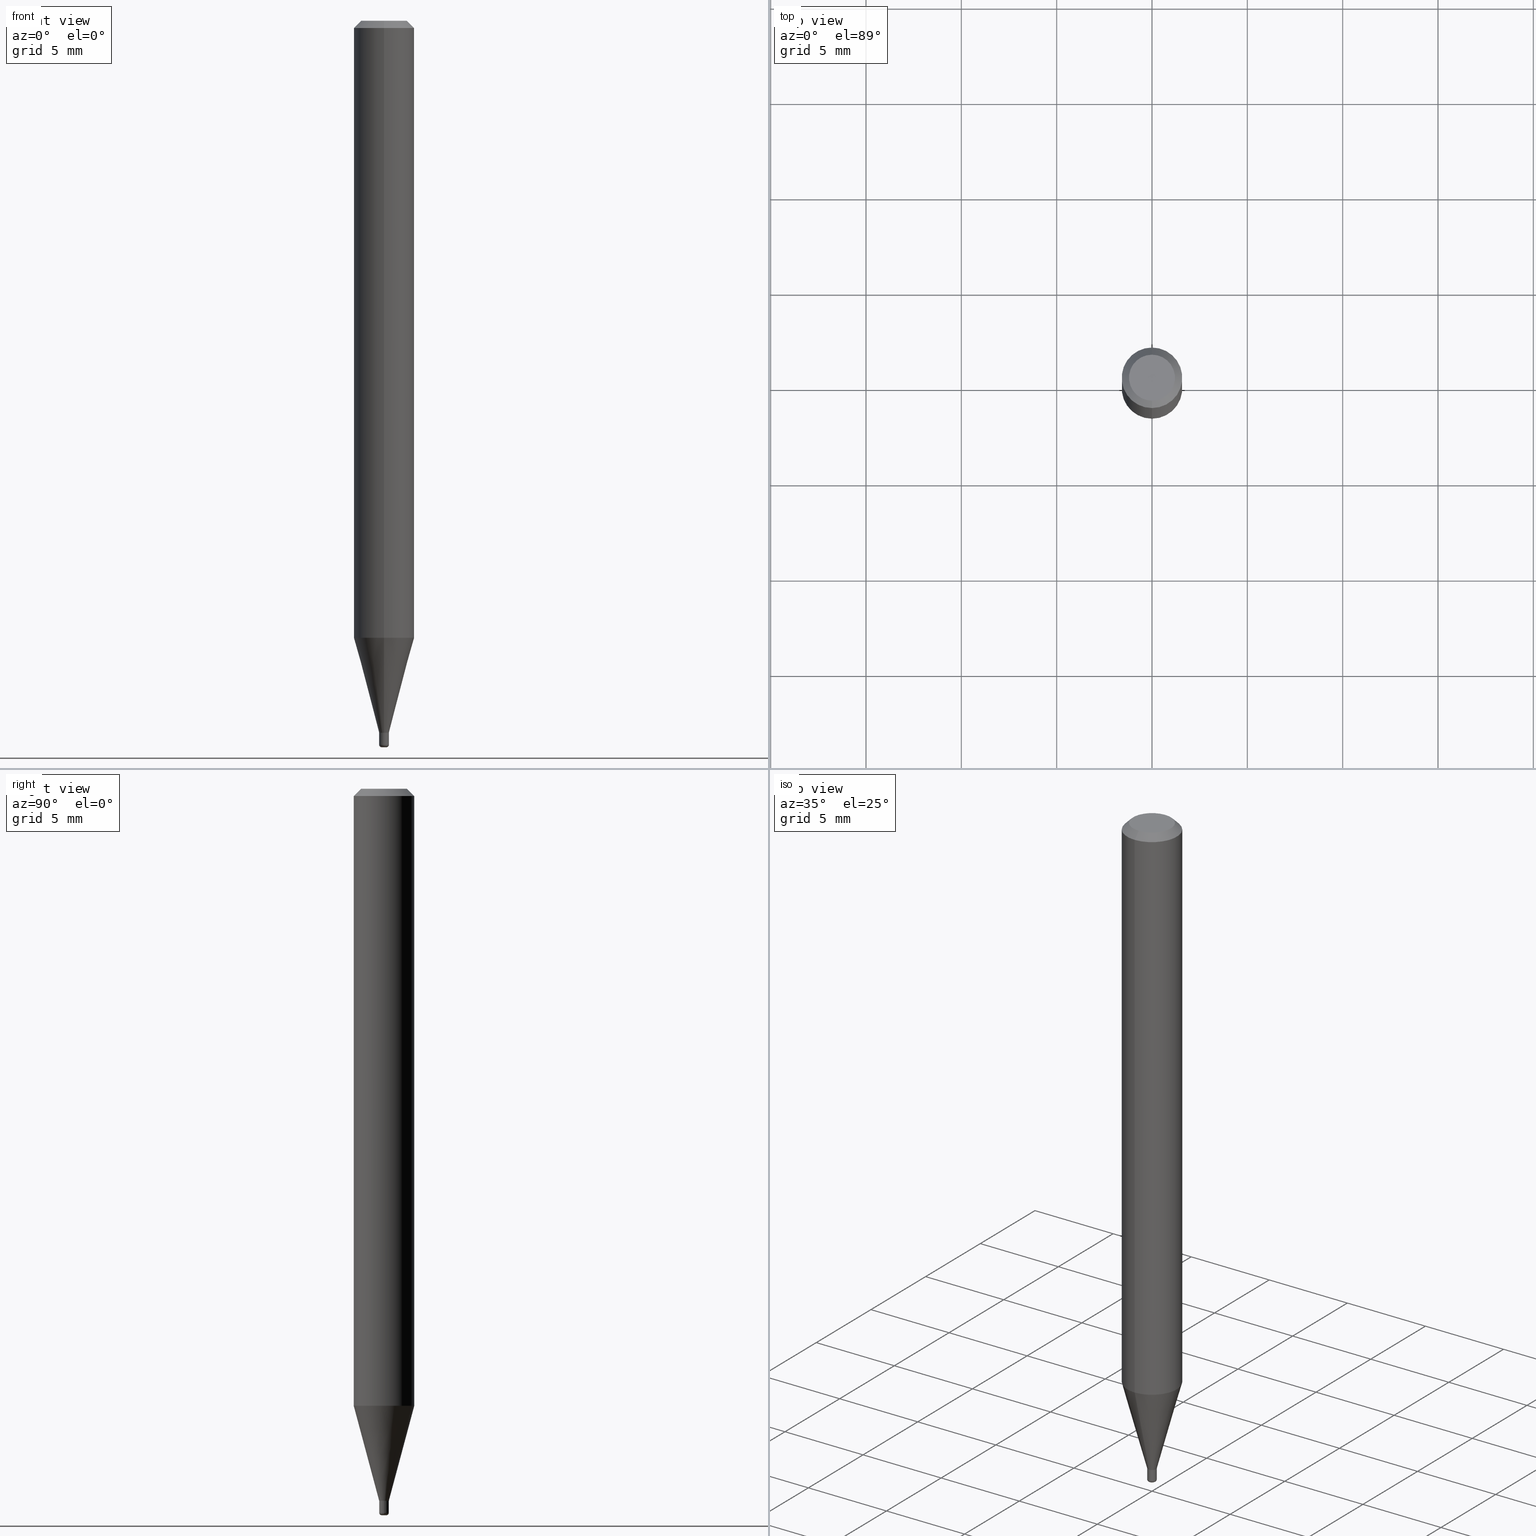
[diagram: canonical four-view strip — front | top / right | iso, engineering-drawing reading convention]
A machine part, canonical four-view strip (front | top / right | iso — engineering-drawing reading convention). The complete STEP part file that produces these views, byte-faithful:
ISO-10303-21;
HEADER;
FILE_DESCRIPTION (( 'STEP AP203' ),
    '1' );
FILE_NAME ('04024.STEP',
    '2024-02-29T19:34:30',
    ( '' ),
    ( '' ),
    'SwSTEP 2.0',
    'SolidWorks 2023',
    '' );
FILE_SCHEMA (( 'CONFIG_CONTROL_DESIGN' ));
ENDSEC;

DATA;
#1 = CARTESIAN_POINT ( 'NONE',  ( 4.440892098500935790E-16, 0.06249999999999554523, -1.274067332602635050 ) ) ;
#2 = EDGE_LOOP ( 'NONE', ( #495, #21, #121, #81 ) ) ;
#3 = DIRECTION ( 'NONE',  ( -2.445517508157003732E-29, 3.491411594847488118E-15, 1.000000000000000000 ) ) ;
#4 = CC_DESIGN_PERSON_AND_ORGANIZATION_ASSIGNMENT ( #456, #88, ( #56 ) ) ;
#5 = ORIENTED_EDGE ( 'NONE', *, *, #473, .T. ) ;
#6 = CARTESIAN_POINT ( 'NONE',  ( 3.593687978236716926E-29, -5.130629338628383513E-15, -1.469500000000000028 ) ) ;
#7 = ADVANCED_FACE ( 'NONE', ( #78 ), #104, .T. ) ;
#8 = VECTOR ( 'NONE', #372, 39.37007874015748143 ) ;
#9 =( LENGTH_UNIT ( ) NAMED_UNIT ( * ) SI_UNIT ( $, .METRE. ) );
#10 = CARTESIAN_POINT ( 'NONE',  ( 3.655975865246779122E-29, -5.219764601570503141E-15, -1.495000000000000107 ) ) ;
#11 = APPROVAL_PERSON_ORGANIZATION ( #93, #301, #468 ) ;
#12 = PERSON_AND_ORGANIZATION ( #397, #80 ) ;
#13 = LOCAL_TIME ( 14, 34, 30.00000000000000000, #97 ) ;
#14 = FACE_OUTER_BOUND ( 'NONE', #330, .T. ) ;
#15 = VERTEX_POINT ( 'NONE', #236 ) ;
#16 = CARTESIAN_POINT ( 'NONE',  ( 0.000000000000000000, 0.000000000000000000, 0.000000000000000000 ) ) ;
#17 = CARTESIAN_POINT ( 'NONE',  ( 3.594910736990795879E-29, -5.132375044425808748E-15, -1.470000000000000417 ) ) ;
#18 = ADVANCED_FACE ( 'NONE', ( #199 ), #410, .F. ) ;
#19 = CONICAL_SURFACE ( 'NONE', #345, 0.06250000000000000000, 0.7853981633974491672 ) ;
#20 = CLOSED_SHELL ( 'NONE', ( #417, #84, #123, #320, #107, #399 ) ) ;
#21 = ORIENTED_EDGE ( 'NONE', *, *, #505, .T. ) ;
#22 = FACE_OUTER_BOUND ( 'NONE', #478, .T. ) ;
#23 = VECTOR ( 'NONE', #407, 39.37007874015748854 ) ;
#24 = FACE_OUTER_BOUND ( 'NONE', #2, .T. ) ;
#25 = LOCAL_TIME ( 14, 34, 30.00000000000000000, #293 ) ;
#26 = EDGE_CURVE ( 'NONE', #255, #72, #470, .T. ) ;
#27 = CARTESIAN_POINT ( 'NONE',  ( -6.633814543798420067E-17, -0.009500000000005223016, -1.470000000000000195 ) ) ;
#28 = EDGE_CURVE ( 'NONE', #401, #508, #185, .T. ) ;
#29 = CARTESIAN_POINT ( 'NONE',  ( 0.000000000000000000, 0.000000000000000000, 0.000000000000000000 ) ) ;
#30 = EDGE_CURVE ( 'NONE', #315, #493, #196, .T. ) ;
#31 = ORIENTED_EDGE ( 'NONE', *, *, #356, .T. ) ;
#32 = CIRCLE ( 'NONE', #502, 0.06250000000000000000 ) ;
#33 = DIRECTION ( 'NONE',  ( -2.445517508157003732E-29, 3.491411594847488118E-15, 1.000000000000000000 ) ) ;
#34 = DIRECTION ( 'NONE',  ( -2.445517508157003732E-29, 3.491411594847488118E-15, 1.000000000000000000 ) ) ;
#35 = AXIS2_PLACEMENT_3D ( 'NONE', #16, #429, #161 ) ;
#36 = CARTESIAN_POINT ( 'NONE',  ( 3.593687978236716926E-29, -5.130629338628383513E-15, -1.469500000000000028 ) ) ;
#37 = CC_DESIGN_DATE_AND_TIME_ASSIGNMENT ( #298, #51, ( #227 ) ) ;
#38 = ORIENTED_EDGE ( 'NONE', *, *, #187, .F. ) ;
#39 = CIRCLE ( 'NONE', #317, 0.009500000000000089970 ) ;
#40 = CARTESIAN_POINT ( 'NONE',  ( 3.316907271900976096E-16, 0.04749999999999999362, -3.024361068583656852E-16 ) ) ;
#41 = DIRECTION ( 'NONE',  ( -1.000000000000000000, 7.105427357601060234E-15, 0.000000000000000000 ) ) ;
#42 = DIRECTION ( 'NONE',  ( -6.982962677686265133E-15, -1.000000000000000000, 0.000000000000000000 ) ) ;
#43 = DIRECTION ( 'NONE',  ( -2.445517508157003732E-29, 3.491411594847488118E-15, 1.000000000000000000 ) ) ;
#44 = AXIS2_PLACEMENT_3D ( 'NONE', #141, #390, #393 ) ;
#45 = ORIENTED_EDGE ( 'NONE', *, *, #220, .T. ) ;
#46 = ORIENTED_EDGE ( 'NONE', *, *, #448, .F. ) ;
#47 = DIRECTION ( 'NONE',  ( 1.000000000000000000, -6.982962677686266711E-15, 4.876176775795934672E-29 ) ) ;
#48 = EDGE_CURVE ( 'NONE', #493, #401, #352, .T. ) ;
#49 = CALENDAR_DATE ( 2024, 29, 2 ) ;
#50 = CARTESIAN_POINT ( 'NONE',  ( 3.115753968450635756E-29, -4.448293457665250698E-15, -1.274067332602634828 ) ) ;
#51 = DATE_TIME_ROLE ( 'creation_date' ) ;
#52 = DATE_TIME_ROLE ( 'classification_date' ) ;
#53 = DIRECTION ( 'NONE',  ( -2.445517508157003732E-29, 3.491411594847488118E-15, 1.000000000000000000 ) ) ;
#54 = AXIS2_PLACEMENT_3D ( 'NONE', #130, #122, #279 ) ;
#55 = APPROVAL_DATE_TIME ( #423, #301 ) ;
#56 = PRODUCT ( '04024', '04024', '', ( #132 ) ) ;
#57 = FACE_OUTER_BOUND ( 'NONE', #74, .T. ) ;
#58 = ORIENTED_EDGE ( 'NONE', *, *, #135, .F. ) ;
#59 = LINE ( 'NONE', #329, #182 ) ;
#60 = ADVANCED_FACE ( 'NONE', ( #405 ), #117, .T. ) ;
#61 = DIRECTION ( 'NONE',  ( -2.445517508157003732E-29, 3.491411594847488118E-15, 1.000000000000000000 ) ) ;
#62 = APPLICATION_CONTEXT ( 'configuration controlled 3d designs of mechanical parts and assemblies' ) ;
#63 = VERTEX_POINT ( 'NONE', #1 ) ;
#64 = CYLINDRICAL_SURFACE ( 'NONE', #404, 0.06250000000000000000 ) ;
#65 = MANIFOLD_SOLID_BREP ( 'Body-Move/Copy2[2]', #389 ) ;
#66 = DIRECTION ( 'NONE',  ( -6.982962677686265922E-15, -1.000000000000000000, 3.491411594847488118E-15 ) ) ;
#67 = CIRCLE ( 'NONE', #287, 0.01000000000000009041 ) ;
#68 = DIRECTION ( 'NONE',  ( -2.445517508157003732E-29, 3.491411594847488118E-15, 1.000000000000000000 ) ) ;
#69 = DIRECTION ( 'NONE',  ( -2.445517508157003732E-29, 3.491411594847488118E-15, 1.000000000000000000 ) ) ;
#70 = DESIGN_CONTEXT ( 'detailed design', #238, 'design' ) ;
#71 = AXIS2_PLACEMENT_3D ( 'NONE', #36, #43, #325 ) ;
#72 = VERTEX_POINT ( 'NONE', #378 ) ;
#73 = LINE ( 'NONE', #403, #190 ) ;
#74 = EDGE_LOOP ( 'NONE', ( #278, #45 ) ) ;
#75 = EDGE_LOOP ( 'NONE', ( #38, #153, #272, #322 ) ) ;
#76 = VECTOR ( 'NONE', #285, 39.37007874015748854 ) ;
#77 = DIRECTION ( 'NONE',  ( -2.445468806185136597E-29, 3.491481338843145583E-15, 1.000000000000000000 ) ) ;
#78 = FACE_OUTER_BOUND ( 'NONE', #449, .T. ) ;
#79 = PLANE ( 'NONE',  #435 ) ;
#80 = ORGANIZATION ( 'UNSPECIFIED', 'UNSPECIFIED', '' ) ;
#81 = ORIENTED_EDGE ( 'NONE', *, *, #363, .F. ) ;
#82 = FACE_OUTER_BOUND ( 'NONE', #332, .T. ) ;
#83 = ORIENTED_EDGE ( 'NONE', *, *, #103, .T. ) ;
#84 = ADVANCED_FACE ( 'NONE', ( #338 ), #289, .T. ) ;
#85 = ORIENTED_EDGE ( 'NONE', *, *, #290, .T. ) ;
#86 = FACE_OUTER_BOUND ( 'NONE', #75, .T. ) ;
#87 = AXIS2_PLACEMENT_3D ( 'NONE', #434, #69, #105 ) ;
#88 = PERSON_AND_ORGANIZATION_ROLE ( 'design_owner' ) ;
#89 = PERSON_AND_ORGANIZATION ( #397, #80 ) ;
#90 = LINE ( 'NONE', #462, #512 ) ;
#91 = FACE_OUTER_BOUND ( 'NONE', #331, .T. ) ;
#92 = AXIS2_PLACEMENT_3D ( 'NONE', #17, #61, #170 ) ;
#93 = PERSON_AND_ORGANIZATION ( #397, #80 ) ;
#94 = CARTESIAN_POINT ( 'NONE',  ( -0.01000000000000009041, 7.105427357601066102E-17, -4.918935090254950063E-31 ) ) ;
#95 = CC_DESIGN_PERSON_AND_ORGANIZATION_ASSIGNMENT ( #381, #100, ( #511 ) ) ;
#96 = EDGE_LOOP ( 'NONE', ( #204, #158, #297, #274 ) ) ;
#97 = COORDINATED_UNIVERSAL_TIME_OFFSET ( 5, 0, .BEHIND. ) ;
#98 = CYLINDRICAL_SURFACE ( 'NONE', #443, 0.01000000000000009041 ) ;
#99 = ORIENTED_EDGE ( 'NONE', *, *, #262, .F. ) ;
#100 = PERSON_AND_ORGANIZATION_ROLE ( 'creator' ) ;
#101 = DATE_AND_TIME ( #304, #339 ) ;
#102 = DIRECTION ( 'NONE',  ( -2.445517508157003732E-29, 3.491411594847488118E-15, 1.000000000000000000 ) ) ;
#103 = EDGE_CURVE ( 'NONE', #319, #203, #39, .T. ) ;
#104 = CONICAL_SURFACE ( 'NONE', #402, 0.01000000000000009041, 0.2617993877991494633 ) ;
#105 = DIRECTION ( 'NONE',  ( -6.982962677686265922E-15, -1.000000000000000000, 0.000000000000000000 ) ) ;
#106 = AXIS2_PLACEMENT_3D ( 'NONE', #164, #333, #120 ) ;
#107 = ADVANCED_FACE ( 'NONE', ( #494 ), #367, .T. ) ;
#108 = AXIS2_PLACEMENT_3D ( 'NONE', #433, #68, #184 ) ;
#109 = CARTESIAN_POINT ( 'NONE',  ( -4.364351673553916201E-16, -0.06250000000000000000, 2.182132246779680074E-16 ) ) ;
#110 = EDGE_CURVE ( 'NONE', #485, #63, #183, .T. ) ;
#111 = LOCAL_TIME ( 14, 34, 30.00000000000000000, #216 ) ;
#112 = UNCERTAINTY_MEASURE_WITH_UNIT (LENGTH_MEASURE( 1.000000000000000082E-05 ), #488, 'distance_accuracy_value', 'NONE');
#113 = EDGE_CURVE ( 'NONE', #319, #15, #90, .T. ) ;
#114 = AXIS2_PLACEMENT_3D ( 'NONE', #283, #447, #181 ) ;
#115 = EDGE_LOOP ( 'NONE', ( #126, #218, #463, #116 ) ) ;
#116 = ORIENTED_EDGE ( 'NONE', *, *, #252, .F. ) ;
#117 = CONICAL_SURFACE ( 'NONE', #394, 0.01000000000000009041, 0.2617993877991494633 ) ;
#118 = ORIENTED_EDGE ( 'NONE', *, *, #422, .T. ) ;
#119 = ORIENTED_EDGE ( 'NONE', *, *, #113, .F. ) ;
#120 = DIRECTION ( 'NONE',  ( -6.982962677686265922E-15, -1.000000000000000000, 0.000000000000000000 ) ) ;
#121 = ORIENTED_EDGE ( 'NONE', *, *, #290, .F. ) ;
#122 = DIRECTION ( 'NONE',  ( -2.445517508157003732E-29, 3.491411594847488118E-15, 1.000000000000000000 ) ) ;
#123 = ADVANCED_FACE ( 'NONE', ( #57 ), #292, .F. ) ;
#124 = DIRECTION ( 'NONE',  ( -2.445468806185136597E-29, 3.491481338843145583E-15, 1.000000000000000000 ) ) ;
#125 = DIRECTION ( 'NONE',  ( -2.445517508157004013E-29, 3.491411594847488118E-15, 1.000000000000000000 ) ) ;
#126 = ORIENTED_EDGE ( 'NONE', *, *, #28, .T. ) ;
#127 = CARTESIAN_POINT ( 'NONE',  ( 6.927791673664621586E-17, 0.009499999999994956923, -1.470000000000000195 ) ) ;
#128 = CC_DESIGN_PERSON_AND_ORGANIZATION_ASSIGNMENT ( #12, #340, ( #511 ) ) ;
#129 = CARTESIAN_POINT ( 'NONE',  ( 0.005000000000000001839, -5.272136821653151404E-15, -1.500000000000000444 ) ) ;
#130 = CARTESIAN_POINT ( 'NONE',  ( 6.680863114206711395E-45, -9.538121425312932952E-31, -2.731881122062200662E-16 ) ) ;
#131 = CARTESIAN_POINT ( 'NONE',  ( 3.594910736990795319E-29, -5.132375044425807960E-15, -1.470000000000000195 ) ) ;
#132 = MECHANICAL_CONTEXT ( 'NONE', #62, 'mechanical' ) ;
#133 = LINE ( 'NONE', #94, #249 ) ;
#134 = AXIS2_PLACEMENT_3D ( 'NONE', #50, #53, #257 ) ;
#135 = EDGE_CURVE ( 'NONE', #178, #415, #246, .T. ) ;
#136 = ORIENTED_EDGE ( 'NONE', *, *, #323, .F. ) ;
#137 = DIRECTION ( 'NONE',  ( -2.445468806185136597E-29, 3.491481338843145583E-15, 1.000000000000000000 ) ) ;
#138 = CIRCLE ( 'NONE', #414, 0.005000000000000177913 ) ;
#139 = ORIENTED_EDGE ( 'NONE', *, *, #244, .T. ) ;
#140 = PERSON_AND_ORGANIZATION ( #397, #80 ) ;
#141 = CARTESIAN_POINT ( 'NONE',  ( 3.668536724130485580E-29, -5.236744396013051988E-15, -1.500000000000000444 ) ) ;
#142 = CARTESIAN_POINT ( 'NONE',  ( -6.982962677682733107E-17, -0.01000000000000522173, -1.470000000000000417 ) ) ;
#143 = DIRECTION ( 'NONE',  ( -2.445517508157003732E-29, 3.491411594847488118E-15, 1.000000000000000000 ) ) ;
#144 = PLANE ( 'NONE',  #44 ) ;
#145 = CC_DESIGN_PERSON_AND_ORGANIZATION_ASSIGNMENT ( #140, #303, ( #227 ) ) ;
#146 = CIRCLE ( 'NONE', #211, 0.01000000000000017888 ) ;
#147 = EDGE_LOOP ( 'NONE', ( #314, #118, #85, #498 ) ) ;
#148 = EDGE_CURVE ( 'NONE', #365, #15, #152, .T. ) ;
#149 = ORIENTED_EDGE ( 'NONE', *, *, #505, .F. ) ;
#150 = EDGE_LOOP ( 'NONE', ( #374, #357, #139, #229 ) ) ;
#151 = CARTESIAN_POINT ( 'NONE',  ( -6.982962677686328587E-17, -0.01000000000000009041, 3.491411594847519525E-17 ) ) ;
#152 = CIRCLE ( 'NONE', #294, 0.01000000000000009041 ) ;
#153 = ORIENTED_EDGE ( 'NONE', *, *, #224, .T. ) ;
#154 = CARTESIAN_POINT ( 'NONE',  ( 3.594839145092150820E-29, -5.132477568099424807E-15, -1.470000000000000195 ) ) ;
#155 = CARTESIAN_POINT ( 'NONE',  ( 3.655975865246779122E-29, -5.219764601570503141E-15, -1.495000000000000107 ) ) ;
#156 = DIRECTION ( 'NONE',  ( -2.445468806185136597E-29, 3.491481338843145583E-15, 1.000000000000000000 ) ) ;
#157 = ADVANCED_FACE ( 'NONE', ( #91 ), #19, .T. ) ;
#158 = ORIENTED_EDGE ( 'NONE', *, *, #267, .T. ) ;
#159 = LINE ( 'NONE', #237, #76 ) ;
#160 = APPROVAL ( #454, 'UNSPECIFIED' ) ;
#161 = DIRECTION ( 'NONE',  ( 1.000000000000000000, 0.000000000000000000, 0.000000000000000000 ) ) ;
#162 = VERTEX_POINT ( 'NONE', #248 ) ;
#163 = ORIENTED_EDGE ( 'NONE', *, *, #135, .T. ) ;
#164 = CARTESIAN_POINT ( 'NONE',  ( 3.594910736990795319E-29, -5.132375044425807960E-15, -1.470000000000000195 ) ) ;
#165 = EDGE_LOOP ( 'NONE', ( #288, #437, #509, #46 ) ) ;
#166 = DIRECTION ( 'NONE',  ( 1.000000000000000000, -6.982962677686304576E-15, 4.883557194083125793E-29 ) ) ;
#167 = CIRCLE ( 'NONE', #106, 0.009500000000000089970 ) ;
#168 = PERSON_AND_ORGANIZATION ( #397, #80 ) ;
#169 = ADVANCED_FACE ( 'NONE', ( #14 ), #98, .F. ) ;
#170 = DIRECTION ( 'NONE',  ( -6.982962677686265133E-15, -1.000000000000000000, 0.000000000000000000 ) ) ;
#171 = DATE_AND_TIME ( #245, #355 ) ;
#172 = DIRECTION ( 'NONE',  ( 6.982962677686265922E-15, 1.000000000000000000, -3.483106191921935554E-15 ) ) ;
#173 = ORIENTED_EDGE ( 'NONE', *, *, #328, .F. ) ;
#174 = APPLICATION_PROTOCOL_DEFINITION ( 'international standard', 'config_control_design', 1994, #62 ) ;
#175 = DIRECTION ( 'NONE',  ( 2.445517508157003732E-29, -3.491411594847488118E-15, -1.000000000000000000 ) ) ;
#176 = CC_DESIGN_DATE_AND_TIME_ASSIGNMENT ( #101, #52, ( #282 ) ) ;
#177 = AXIS2_PLACEMENT_3D ( 'NONE', #321, #489, #275 ) ;
#178 = VERTEX_POINT ( 'NONE', #217 ) ;
#179 = CARTESIAN_POINT ( 'NONE',  ( 3.655975865246779122E-29, -5.219764601570503141E-15, -1.495000000000000107 ) ) ;
#180 = SHAPE_DEFINITION_REPRESENTATION ( #254, #296 ) ;
#181 = DIRECTION ( 'NONE',  ( -6.982962677686266711E-15, -1.000000000000000000, 3.491411594847488512E-15 ) ) ;
#182 = VECTOR ( 'NONE', #379, 39.37007874015748143 ) ;
#183 = CIRCLE ( 'NONE', #134, 0.06250000000000000000 ) ;
#184 = DIRECTION ( 'NONE',  ( -6.982962677686265133E-15, -1.000000000000000000, 3.491411594847488118E-15 ) ) ;
#185 = CIRCLE ( 'NONE', #458, 0.01000000000000017888 ) ;
#186 = CARTESIAN_POINT ( 'NONE',  ( 0.01000000000000017888, -5.289594228347367228E-15, -1.495000000000000107 ) ) ;
#187 = EDGE_CURVE ( 'NONE', #508, #72, #133, .T. ) ;
#188 = ORIENTED_EDGE ( 'NONE', *, *, #247, .T. ) ;
#189 = EDGE_CURVE ( 'NONE', #493, #315, #270, .T. ) ;
#190 = VECTOR ( 'NONE', #369, 39.37007874015748143 ) ;
#191 = EDGE_LOOP ( 'NONE', ( #207, #467, #344, #326 ) ) ;
#192 = CARTESIAN_POINT ( 'NONE',  ( 3.594910736990795879E-29, -5.132375044425808748E-15, -1.470000000000000417 ) ) ;
#193 = AXIS2_PLACEMENT_3D ( 'NONE', #474, #305, #66 ) ;
#194 = CC_DESIGN_APPROVAL ( #160, ( #282 ) ) ;
#195 = DIRECTION ( 'NONE',  ( -6.982962677686265922E-15, -1.000000000000000000, 3.483106191921935554E-15 ) ) ;
#196 = CIRCLE ( 'NONE', #341, 0.005000000000000001839 ) ;
#197 = DIRECTION ( 'NONE',  ( 2.445517508157003172E-29, -3.491411594847488118E-15, -1.000000000000000000 ) ) ;
#198 = DIRECTION ( 'NONE',  ( -6.982962677686265922E-15, -1.000000000000000000, 3.491411594847488118E-15 ) ) ;
#199 = FACE_OUTER_BOUND ( 'NONE', #439, .T. ) ;
#200 = APPROVAL ( #464, 'UNSPECIFIED' ) ;
#201 = CARTESIAN_POINT ( 'NONE',  ( -6.982962677682733107E-17, -0.01000000000000522173, -1.470000000000000417 ) ) ;
#202 = CARTESIAN_POINT ( 'NONE',  ( -0.01000000000000017888, -5.105066811258952315E-15, -1.495000000000000107 ) ) ;
#203 = VERTEX_POINT ( 'NONE', #466 ) ;
#204 = ORIENTED_EDGE ( 'NONE', *, *, #280, .T. ) ;
#205 = CARTESIAN_POINT ( 'NONE',  ( 3.115753968450635756E-29, -4.448293457665250698E-15, -1.274067332602634828 ) ) ;
#206 = LENGTH_MEASURE_WITH_UNIT ( LENGTH_MEASURE( 0.02539999999999999897 ), #9 );
#207 = ORIENTED_EDGE ( 'NONE', *, *, #310, .F. ) ;
#208 = DIRECTION ( 'NONE',  ( 2.438088387897960049E-29, -3.491481338843145188E-15, -1.000000000000000000 ) ) ;
#209 = APPROVAL_STATUS ( 'not_yet_approved' ) ;
#210 = CARTESIAN_POINT ( 'NONE',  ( 6.982962677689861205E-17, 0.009999999999994867161, -1.470000000000000195 ) ) ;
#211 = AXIS2_PLACEMENT_3D ( 'NONE', #440, #230, #418 ) ;
#212 = ADVANCED_FACE ( 'NONE', ( #413 ), #226, .T. ) ;
#213 = APPROVAL_ROLE ( '' ) ;
#214 = DIRECTION ( 'NONE',  ( -2.445468806185136597E-29, 3.491481338843145583E-15, 1.000000000000000000 ) ) ;
#215 = ORIENTED_EDGE ( 'NONE', *, *, #359, .T. ) ;
#216 = COORDINATED_UNIVERSAL_TIME_OFFSET ( 5, 0, .BEHIND. ) ;
#217 = CARTESIAN_POINT ( 'NONE',  ( 2.575717417130703193E-16, 0.009999999999994957367, -1.470000000000000417 ) ) ;
#218 = ORIENTED_EDGE ( 'NONE', *, *, #187, .T. ) ;
#219 = DIRECTION ( 'NONE',  ( 1.000000000000000000, -6.982962677686304576E-15, 4.883557194083125793E-29 ) ) ;
#220 = EDGE_CURVE ( 'NONE', #72, #255, #475, .T. ) ;
#221 = CIRCLE ( 'NONE', #358, 0.06250000000000000000 ) ;
#222 = FACE_OUTER_BOUND ( 'NONE', #150, .T. ) ;
#223 = AXIS2_PLACEMENT_3D ( 'NONE', #427, #214, #455 ) ;
#224 = EDGE_CURVE ( 'NONE', #508, #401, #146, .T. ) ;
#225 = CARTESIAN_POINT ( 'NONE',  ( 3.594910736990795319E-29, -5.132375044425807960E-15, -1.470000000000000195 ) ) ;
#226 = CONICAL_SURFACE ( 'NONE', #177, 0.06250000000000000000, 0.7853981633974491672 ) ;
#227 = PRODUCT_DEFINITION ( 'UNKNOWN', '', #511, #70 ) ;
#228 = MANIFOLD_SOLID_BREP ( 'Body-Move/Copy2[1]', #20 ) ;
#229 = ORIENTED_EDGE ( 'NONE', *, *, #148, .T. ) ;
#230 = DIRECTION ( 'NONE',  ( -2.445468806185136597E-29, 3.491481338843145583E-15, 1.000000000000000000 ) ) ;
#231 = AXIS2_PLACEMENT_3D ( 'NONE', #179, #265, #219 ) ;
#232 = EDGE_LOOP ( 'NONE', ( #149, #425, #364, #486 ) ) ;
#233 = LINE ( 'NONE', #201, #23 ) ;
#234 = CARTESIAN_POINT ( 'NONE',  ( 3.594910736990795879E-29, -5.132375044425808748E-15, -1.470000000000000417 ) ) ;
#235 = CARTESIAN_POINT ( 'NONE',  ( 3.594910736990795319E-29, -5.132375044425807960E-15, -1.470000000000000195 ) ) ;
#236 = CARTESIAN_POINT ( 'NONE',  ( 7.105427357604635697E-17, 0.009999999999994924407, -1.469500000000000028 ) ) ;
#237 = CARTESIAN_POINT ( 'NONE',  ( 7.105427357604659116E-17, 0.009999999999994957367, -1.470000000000000417 ) ) ;
#238 = APPLICATION_CONTEXT ( 'configuration controlled 3d designs of mechanical parts and assemblies' ) ;
#239 = TOROIDAL_SURFACE ( 'NONE', #231, 0.005000000000000000971, 0.005000000000000177046 ) ;
#240 = DIRECTION ( 'NONE',  ( 1.000000000000000000, -6.982962677686329819E-15, 0.000000000000000000 ) ) ;
#241 = DIRECTION ( 'NONE',  ( -2.445517508157003732E-29, 3.491411594847488118E-15, 1.000000000000000000 ) ) ;
#242 = APPLICATION_PROTOCOL_DEFINITION ( 'international standard', 'config_control_design', 1994, #238 ) ;
#243 = DIRECTION ( 'NONE',  ( -6.982962677686265922E-15, -1.000000000000000000, 0.000000000000000000 ) ) ;
#244 = EDGE_CURVE ( 'NONE', #415, #365, #480, .T. ) ;
#245 = CALENDAR_DATE ( 2024, 29, 2 ) ;
#246 = CIRCLE ( 'NONE', #92, 0.01000000000000009041 ) ;
#247 = EDGE_CURVE ( 'NONE', #415, #485, #233, .T. ) ;
#248 = CARTESIAN_POINT ( 'NONE',  ( 3.840629472727447874E-16, 0.04749999999999999362, -4.390301629614757676E-16 ) ) ;
#249 = VECTOR ( 'NONE', #424, 39.37007874015748143 ) ;
#250 = AXIS2_PLACEMENT_3D ( 'NONE', #40, #197, #371 ) ;
#251 = CALENDAR_DATE ( 2024, 29, 2 ) ;
#252 = EDGE_CURVE ( 'NONE', #401, #255, #73, .T. ) ;
#253 = DIRECTION ( 'NONE',  ( 5.024295867787193854E-15, 0.7071067811864277797, 0.7071067811866673658 ) ) ;
#254 = PRODUCT_DEFINITION_SHAPE ( 'NONE', 'NONE',  #227 ) ;
#255 = VERTEX_POINT ( 'NONE', #518 ) ;
#256 = SECURITY_CLASSIFICATION_LEVEL ( 'unclassified' ) ;
#257 = DIRECTION ( 'NONE',  ( -6.982962677686265922E-15, -1.000000000000000000, 4.370956789862821150E-15 ) ) ;
#258 = EDGE_CURVE ( 'NONE', #360, #446, #221, .T. ) ;
#259 = ORIENTED_EDGE ( 'NONE', *, *, #359, .F. ) ;
#260 = LINE ( 'NONE', #376, #337 ) ;
#261 = DATE_AND_TIME ( #460, #111 ) ;
#262 = EDGE_CURVE ( 'NONE', #15, #365, #507, .T. ) ;
#263 = CARTESIAN_POINT ( 'NONE',  ( -4.287811248607203282E-16, -0.06250000000000005551, -0.01500000000000003240 ) ) ;
#264 = CONICAL_SURFACE ( 'NONE', #87, 0.009500000000000089970, 0.7853981633972754173 ) ;
#265 = DIRECTION ( 'NONE',  ( -2.445468806185136597E-29, 3.491481338843145583E-15, 1.000000000000000000 ) ) ;
#266 =( GEOMETRIC_REPRESENTATION_CONTEXT ( 3 ) GLOBAL_UNCERTAINTY_ASSIGNED_CONTEXT ( ( #112 ) ) GLOBAL_UNIT_ASSIGNED_CONTEXT ( ( #488, #386, #453 ) ) REPRESENTATION_CONTEXT ( 'NONE', 'WORKASPACE' ) );
#267 = EDGE_CURVE ( 'NONE', #178, #63, #159, .T. ) ;
#268 = FACE_OUTER_BOUND ( 'NONE', #318, .T. ) ;
#269 = AXIS2_PLACEMENT_3D ( 'NONE', #416, #281, #271 ) ;
#270 = CIRCLE ( 'NONE', #441, 0.005000000000000001839 ) ;
#271 = DIRECTION ( 'NONE',  ( 1.000000000000000000, -6.982962677686278543E-15, 0.000000000000000000 ) ) ;
#272 = ORIENTED_EDGE ( 'NONE', *, *, #252, .T. ) ;
#273 = ORIENTED_EDGE ( 'NONE', *, *, #103, .F. ) ;
#274 = ORIENTED_EDGE ( 'NONE', *, *, #247, .F. ) ;
#275 = DIRECTION ( 'NONE',  ( 6.982962677686265922E-15, 1.000000000000000000, -3.483106191921935554E-15 ) ) ;
#276 = CIRCLE ( 'NONE', #54, 0.04749999999999999362 ) ;
#277 = ORIENTED_EDGE ( 'NONE', *, *, #448, .T. ) ;
#278 = ORIENTED_EDGE ( 'NONE', *, *, #26, .T. ) ;
#279 = DIRECTION ( 'NONE',  ( -6.982962677686266711E-15, -1.000000000000000000, 3.491411594847488512E-15 ) ) ;
#280 = EDGE_CURVE ( 'NONE', #415, #178, #67, .T. ) ;
#281 = DIRECTION ( 'NONE',  ( -6.982962677686266711E-15, -1.000000000000000000, 3.491481338843145583E-15 ) ) ;
#282 = SECURITY_CLASSIFICATION ( '', '', #256 ) ;
#283 = CARTESIAN_POINT ( 'NONE',  ( 6.680863114206711395E-45, -9.538121425312932952E-31, -2.731881122062200662E-16 ) ) ;
#284 = DIRECTION ( 'NONE',  ( 1.000000000000000000, -6.982962677686235945E-15, 0.000000000000000000 ) ) ;
#285 = DIRECTION ( 'NONE',  ( 1.839019923739594399E-15, 0.2588190451025241257, 0.9659258262890673130 ) ) ;
#286 = AXIS2_PLACEMENT_3D ( 'NONE', #368, #515, #284 ) ;
#287 = AXIS2_PLACEMENT_3D ( 'NONE', #192, #327, #366 ) ;
#288 = ORIENTED_EDGE ( 'NONE', *, *, #328, .T. ) ;
#289 = CYLINDRICAL_SURFACE ( 'NONE', #223, 0.01000000000000009041 ) ;
#290 = EDGE_CURVE ( 'NONE', #446, #360, #32, .T. ) ;
#291 = APPROVAL_DATE_TIME ( #261, #160 ) ;
#292 = PLANE ( 'NONE',  #477 ) ;
#293 = COORDINATED_UNIVERSAL_TIME_OFFSET ( 5, 0, .BEHIND. ) ;
#294 = AXIS2_PLACEMENT_3D ( 'NONE', #6, #336, #491 ) ;
#295 = DIRECTION ( 'NONE',  ( -2.445517508157003732E-29, 3.491411594847488118E-15, 1.000000000000000000 ) ) ;
#296 = ADVANCED_BREP_SHAPE_REPRESENTATION ( '04024', ( #228, #65, #35 ), #266 ) ;
#297 = ORIENTED_EDGE ( 'NONE', *, *, #110, .F. ) ;
#298 = DATE_AND_TIME ( #49, #13 ) ;
#299 = DIRECTION ( 'NONE',  ( 1.000000000000000000, -6.982962677686329819E-15, 0.000000000000000000 ) ) ;
#300 = CIRCLE ( 'NONE', #114, 0.04749999999999999362 ) ;
#301 = APPROVAL ( #209, 'UNSPECIFIED' ) ;
#302 = ORIENTED_EDGE ( 'NONE', *, *, #306, .T. ) ;
#303 = PERSON_AND_ORGANIZATION_ROLE ( 'creator' ) ;
#304 = CALENDAR_DATE ( 2024, 29, 2 ) ;
#305 = DIRECTION ( 'NONE',  ( -2.445517508157003732E-29, 3.491411594847488118E-15, 1.000000000000000000 ) ) ;
#306 = EDGE_CURVE ( 'NONE', #361, #162, #276, .T. ) ;
#307 = FACE_OUTER_BOUND ( 'NONE', #232, .T. ) ;
#308 = VECTOR ( 'NONE', #503, 39.37007874015748143 ) ;
#309 = LINE ( 'NONE', #109, #497 ) ;
#310 = EDGE_CURVE ( 'NONE', #315, #508, #138, .T. ) ;
#311 = LINE ( 'NONE', #27, #476 ) ;
#312 = CIRCLE ( 'NONE', #335, 0.06250000000000000000 ) ;
#313 = APPROVAL_PERSON_ORGANIZATION ( #89, #160, #213 ) ;
#314 = ORIENTED_EDGE ( 'NONE', *, *, #306, .F. ) ;
#315 = VERTEX_POINT ( 'NONE', #451 ) ;
#316 = DIRECTION ( 'NONE',  ( 7.105427357601001859E-15, 1.000000000000000000, -3.491481338843145583E-15 ) ) ;
#317 = AXIS2_PLACEMENT_3D ( 'NONE', #131, #295, #243 ) ;
#318 = EDGE_LOOP ( 'NONE', ( #119, #83, #277, #99 ) ) ;
#319 = VERTEX_POINT ( 'NONE', #127 ) ;
#320 = ADVANCED_FACE ( 'NONE', ( #86 ), #479, .T. ) ;
#321 = CARTESIAN_POINT ( 'NONE',  ( 3.668276262235566117E-31, -5.237117392271319346E-17, -0.01500000000000024925 ) ) ;
#322 = ORIENTED_EDGE ( 'NONE', *, *, #220, .F. ) ;
#323 = EDGE_CURVE ( 'NONE', #63, #485, #312, .T. ) ;
#324 = DIRECTION ( 'NONE',  ( -2.445468806185136597E-29, 3.491481338843145583E-15, 1.000000000000000000 ) ) ;
#325 = DIRECTION ( 'NONE',  ( -6.982962677686265133E-15, -1.000000000000000000, 0.000000000000000000 ) ) ;
#326 = ORIENTED_EDGE ( 'NONE', *, *, #224, .F. ) ;
#327 = DIRECTION ( 'NONE',  ( -2.445517508157003732E-29, 3.491411594847488118E-15, 1.000000000000000000 ) ) ;
#328 = EDGE_CURVE ( 'NONE', #203, #319, #167, .T. ) ;
#329 = CARTESIAN_POINT ( 'NONE',  ( 4.364351673553919652E-16, 0.06249999999999995143, -0.01500000000000046782 ) ) ;
#330 = EDGE_LOOP ( 'NONE', ( #58, #31, #513, #428 ) ) ;
#331 = EDGE_LOOP ( 'NONE', ( #436, #259, #5, #442 ) ) ;
#332 = EDGE_LOOP ( 'NONE', ( #173, #273 ) ) ;
#333 = DIRECTION ( 'NONE',  ( -2.445517508157003732E-29, 3.491411594847488118E-15, 1.000000000000000000 ) ) ;
#334 = DIRECTION ( 'NONE',  ( -2.445517508157004013E-29, 3.491411594847488118E-15, 1.000000000000000000 ) ) ;
#335 = AXIS2_PLACEMENT_3D ( 'NONE', #205, #3, #445 ) ;
#336 = DIRECTION ( 'NONE',  ( -2.445517508157003732E-29, 3.491411594847488118E-15, 1.000000000000000000 ) ) ;
#337 = VECTOR ( 'NONE', #334, 39.37007874015748143 ) ;
#338 = FACE_OUTER_BOUND ( 'NONE', #115, .T. ) ;
#339 = LOCAL_TIME ( 14, 34, 30.00000000000000000, #347 ) ;
#340 = PERSON_AND_ORGANIZATION_ROLE ( 'design_supplier' ) ;
#341 = AXIS2_PLACEMENT_3D ( 'NONE', #450, #124, #240 ) ;
#342 = DIRECTION ( 'NONE',  ( -2.445517508157003732E-29, 3.491411594847488118E-15, 1.000000000000000000 ) ) ;
#343 = ADVANCED_FACE ( 'NONE', ( #82 ), #79, .F. ) ;
#344 = ORIENTED_EDGE ( 'NONE', *, *, #48, .T. ) ;
#345 = AXIS2_PLACEMENT_3D ( 'NONE', #383, #175, #172 ) ;
#346 = COORDINATED_UNIVERSAL_TIME_OFFSET ( 5, 0, .BEHIND. ) ;
#347 = COORDINATED_UNIVERSAL_TIME_OFFSET ( 5, 0, .BEHIND. ) ;
#348 = CONICAL_SURFACE ( 'NONE', #391, 0.009500000000000089970, 0.7853981633972754173 ) ;
#349 = ORIENTED_EDGE ( 'NONE', *, *, #30, .F. ) ;
#350 = LINE ( 'NONE', #263, #308 ) ;
#351 = CARTESIAN_POINT ( 'NONE',  ( -4.364351673553912750E-16, -0.06250000000000005551, -0.01500000000000003240 ) ) ;
#352 = CIRCLE ( 'NONE', #269, 0.005000000000000177913 ) ;
#353 = CARTESIAN_POINT ( 'NONE',  ( -6.982962677682758991E-17, -0.01000000000000525469, -1.469500000000000028 ) ) ;
#354 = FACE_OUTER_BOUND ( 'NONE', #385, .T. ) ;
#355 = LOCAL_TIME ( 14, 34, 30.00000000000000000, #346 ) ;
#356 = EDGE_CURVE ( 'NONE', #178, #15, #517, .T. ) ;
#357 = ORIENTED_EDGE ( 'NONE', *, *, #280, .F. ) ;
#358 = AXIS2_PLACEMENT_3D ( 'NONE', #438, #33, #195 ) ;
#359 = EDGE_CURVE ( 'NONE', #162, #361, #300, .T. ) ;
#360 = VERTEX_POINT ( 'NONE', #430 ) ;
#361 = VERTEX_POINT ( 'NONE', #392 ) ;
#362 = CARTESIAN_POINT ( 'NONE',  ( -0.005000000000000000971, -5.184237464782498889E-15, -1.495000000000000107 ) ) ;
#363 = EDGE_CURVE ( 'NONE', #485, #446, #309, .T. ) ;
#364 = ORIENTED_EDGE ( 'NONE', *, *, #363, .T. ) ;
#365 = VERTEX_POINT ( 'NONE', #353 ) ;
#366 = DIRECTION ( 'NONE',  ( -6.982962677686265133E-15, -1.000000000000000000, 0.000000000000000000 ) ) ;
#367 = TOROIDAL_SURFACE ( 'NONE', #421, 0.005000000000000000971, 0.005000000000000177046 ) ;
#368 = CARTESIAN_POINT ( 'NONE',  ( 3.594839145092150820E-29, -5.132477568099424807E-15, -1.470000000000000195 ) ) ;
#369 = DIRECTION ( 'NONE',  ( -2.445468806185136877E-29, 3.491481338843145188E-15, 1.000000000000000000 ) ) ;
#370 = AXIS2_PLACEMENT_3D ( 'NONE', #375, #156, #47 ) ;
#371 = DIRECTION ( 'NONE',  ( 6.982962677686265922E-15, 1.000000000000000000, -3.491411594847488118E-15 ) ) ;
#372 = DIRECTION ( 'NONE',  ( -2.445517508157004013E-29, 3.491411594847488118E-15, 1.000000000000000000 ) ) ;
#373 = ORIENTED_EDGE ( 'NONE', *, *, #267, .F. ) ;
#374 = ORIENTED_EDGE ( 'NONE', *, *, #356, .F. ) ;
#375 = CARTESIAN_POINT ( 'NONE',  ( 0.000000000000000000, 0.000000000000000000, 0.000000000000000000 ) ) ;
#376 = CARTESIAN_POINT ( 'NONE',  ( 4.440892098500625669E-16, 0.06250000000000000000, -2.182132246779680074E-16 ) ) ;
#377 = ORIENTED_EDGE ( 'NONE', *, *, #48, .F. ) ;
#378 = CARTESIAN_POINT ( 'NONE',  ( -0.01000000000000000021, -5.105066811258953892E-15, -1.470000000000000195 ) ) ;
#379 = DIRECTION ( 'NONE',  ( 4.937700262164551986E-15, 0.7071067811865456854, -0.7071067811865493491 ) ) ;
#380 = DIRECTION ( 'NONE',  ( -6.982962677686265133E-15, -1.000000000000000000, 3.491411594847488118E-15 ) ) ;
#381 = PERSON_AND_ORGANIZATION ( #397, #80 ) ;
#382 = ADVANCED_FACE ( 'NONE', ( #24 ), #64, .T. ) ;
#383 = CARTESIAN_POINT ( 'NONE',  ( 3.668276262235566117E-31, -5.237117392271319346E-17, -0.01500000000000024925 ) ) ;
#384 = CC_DESIGN_APPROVAL ( #301, ( #511 ) ) ;
#385 = EDGE_LOOP ( 'NONE', ( #506, #406, #388, #377 ) ) ;
#386 =( NAMED_UNIT ( * ) PLANE_ANGLE_UNIT ( ) SI_UNIT ( $, .RADIAN. ) );
#387 = CARTESIAN_POINT ( 'NONE',  ( 3.668203209277706016E-29, -5.237222008264719754E-15, -1.500000000000000444 ) ) ;
#388 = ORIENTED_EDGE ( 'NONE', *, *, #28, .F. ) ;
#389 = CLOSED_SHELL ( 'NONE', ( #169, #398, #212, #382, #60, #7, #431, #157, #18, #343, #395, #461 ) ) ;
#390 = DIRECTION ( 'NONE',  ( -2.438088387897960049E-29, 3.491481338843145188E-15, 1.000000000000000000 ) ) ;
#391 = AXIS2_PLACEMENT_3D ( 'NONE', #225, #143, #396 ) ;
#392 = CARTESIAN_POINT ( 'NONE',  ( -3.773273898774340269E-16, -0.04749999999999999362, -1.073460614509644018E-16 ) ) ;
#393 = DIRECTION ( 'NONE',  ( 1.000000000000000000, -6.982962677686265922E-15, 4.876176775795935793E-29 ) ) ;
#394 = AXIS2_PLACEMENT_3D ( 'NONE', #400, #34, #481 ) ;
#395 = ADVANCED_FACE ( 'NONE', ( #268 ), #264, .T. ) ;
#396 = DIRECTION ( 'NONE',  ( -6.982962677686265922E-15, -1.000000000000000000, 0.000000000000000000 ) ) ;
#397 = PERSON ( 'UNSPECIFIED', 'UNSPECIFIED', 'UNSPECIFIED', ('UNSPECIFIED'), ('UNSPECIFIED'), ('UNSPECIFIED') ) ;
#398 = ADVANCED_FACE ( 'NONE', ( #501 ), #348, .T. ) ;
#399 = ADVANCED_FACE ( 'NONE', ( #22 ), #144, .F. ) ;
#400 = CARTESIAN_POINT ( 'NONE',  ( 3.594910736990795879E-29, -5.132375044425808748E-15, -1.470000000000000417 ) ) ;
#401 = VERTEX_POINT ( 'NONE', #186 ) ;
#402 = AXIS2_PLACEMENT_3D ( 'NONE', #234, #412, #42 ) ;
#403 = CARTESIAN_POINT ( 'NONE',  ( 0.01000000000000009041, -6.982962677686329819E-17, 4.876176775795978883E-31 ) ) ;
#404 = AXIS2_PLACEMENT_3D ( 'NONE', #29, #102, #471 ) ;
#405 = FACE_OUTER_BOUND ( 'NONE', #96, .T. ) ;
#406 = ORIENTED_EDGE ( 'NONE', *, *, #310, .T. ) ;
#407 = DIRECTION ( 'NONE',  ( -1.807323732225324223E-15, -0.2588190451025173533, 0.9659258262890690894 ) ) ;
#408 = CC_DESIGN_SECURITY_CLASSIFICATION ( #282, ( #511 ) ) ;
#409 = APPROVAL_PERSON_ORGANIZATION ( #426, #200, #419 ) ;
#410 = PLANE ( 'NONE',  #250 ) ;
#411 = DIRECTION ( 'NONE',  ( -2.445517508157003172E-29, 3.491411594847488118E-15, 1.000000000000000000 ) ) ;
#412 = DIRECTION ( 'NONE',  ( -2.445517508157003732E-29, 3.491411594847488118E-15, 1.000000000000000000 ) ) ;
#413 = FACE_OUTER_BOUND ( 'NONE', #147, .T. ) ;
#414 = AXIS2_PLACEMENT_3D ( 'NONE', #362, #316, #41 ) ;
#415 = VERTEX_POINT ( 'NONE', #142 ) ;
#416 = CARTESIAN_POINT ( 'NONE',  ( 0.005000000000000000971, -5.254679414958934790E-15, -1.495000000000000107 ) ) ;
#417 = ADVANCED_FACE ( 'NONE', ( #354 ), #239, .T. ) ;
#418 = DIRECTION ( 'NONE',  ( 1.000000000000000000, -6.982962677686304576E-15, 0.000000000000000000 ) ) ;
#419 = APPROVAL_ROLE ( '' ) ;
#420 = DIRECTION ( 'NONE',  ( -2.445468806185136597E-29, 3.491481338843145583E-15, 1.000000000000000000 ) ) ;
#421 = AXIS2_PLACEMENT_3D ( 'NONE', #10, #420, #166 ) ;
#422 = EDGE_CURVE ( 'NONE', #361, #446, #350, .T. ) ;
#423 = DATE_AND_TIME ( #251, #25 ) ;
#424 = DIRECTION ( 'NONE',  ( -2.445468806185136877E-29, 3.491481338843145188E-15, 1.000000000000000000 ) ) ;
#425 = ORIENTED_EDGE ( 'NONE', *, *, #323, .T. ) ;
#426 = PERSON_AND_ORGANIZATION ( #397, #80 ) ;
#427 = CARTESIAN_POINT ( 'NONE',  ( 0.000000000000000000, 0.000000000000000000, 0.000000000000000000 ) ) ;
#428 = ORIENTED_EDGE ( 'NONE', *, *, #244, .F. ) ;
#429 = DIRECTION ( 'NONE',  ( 0.000000000000000000, 0.000000000000000000, 1.000000000000000000 ) ) ;
#430 = CARTESIAN_POINT ( 'NONE',  ( 4.440892098500939734E-16, 0.06249999999999995143, -0.01500000000000046782 ) ) ;
#431 = ADVANCED_FACE ( 'NONE', ( #307 ), #499, .T. ) ;
#432 = VECTOR ( 'NONE', #125, 39.37007874015748143 ) ;
#433 = CARTESIAN_POINT ( 'NONE',  ( 0.000000000000000000, 0.000000000000000000, 0.000000000000000000 ) ) ;
#434 = CARTESIAN_POINT ( 'NONE',  ( 3.594910736990795319E-29, -5.132375044425807960E-15, -1.470000000000000195 ) ) ;
#435 = AXIS2_PLACEMENT_3D ( 'NONE', #235, #411, #198 ) ;
#436 = ORIENTED_EDGE ( 'NONE', *, *, #422, .F. ) ;
#437 = ORIENTED_EDGE ( 'NONE', *, *, #113, .T. ) ;
#438 = CARTESIAN_POINT ( 'NONE',  ( 3.668276262235566117E-31, -5.237117392271319346E-17, -0.01500000000000024925 ) ) ;
#439 = EDGE_LOOP ( 'NONE', ( #215, #302 ) ) ;
#440 = CARTESIAN_POINT ( 'NONE',  ( 3.655975865246779122E-29, -5.219764601570503141E-15, -1.495000000000000107 ) ) ;
#441 = AXIS2_PLACEMENT_3D ( 'NONE', #387, #137, #299 ) ;
#442 = ORIENTED_EDGE ( 'NONE', *, *, #258, .T. ) ;
#443 = AXIS2_PLACEMENT_3D ( 'NONE', #492, #342, #380 ) ;
#444 = ORIENTED_EDGE ( 'NONE', *, *, #189, .F. ) ;
#445 = DIRECTION ( 'NONE',  ( -6.982962677686265922E-15, -1.000000000000000000, 4.370956789862821150E-15 ) ) ;
#446 = VERTEX_POINT ( 'NONE', #351 ) ;
#447 = DIRECTION ( 'NONE',  ( -2.445517508157003732E-29, 3.491411594847488118E-15, 1.000000000000000000 ) ) ;
#448 = EDGE_CURVE ( 'NONE', #203, #365, #311, .T. ) ;
#449 = EDGE_LOOP ( 'NONE', ( #373, #163, #188, #136 ) ) ;
#450 = CARTESIAN_POINT ( 'NONE',  ( 3.668203209277706016E-29, -5.237222008264719754E-15, -1.500000000000000444 ) ) ;
#451 = CARTESIAN_POINT ( 'NONE',  ( -0.005000000000000001839, -5.175202599735603492E-15, -1.500000000000000444 ) ) ;
#452 = AXIS2_PLACEMENT_3D ( 'NONE', #154, #77, #510 ) ;
#453 =( NAMED_UNIT ( * ) SI_UNIT ( $, .STERADIAN. ) SOLID_ANGLE_UNIT ( ) );
#454 = APPROVAL_STATUS ( 'not_yet_approved' ) ;
#455 = DIRECTION ( 'NONE',  ( 1.000000000000000000, -6.982962677686266711E-15, 4.876176775795934672E-29 ) ) ;
#456 = PERSON_AND_ORGANIZATION ( #397, #80 ) ;
#457 = DIRECTION ( 'NONE',  ( -1.000000000000000000, 6.982962677686265922E-15, -4.876176775795935793E-29 ) ) ;
#458 = AXIS2_PLACEMENT_3D ( 'NONE', #155, #324, #482 ) ;
#459 = DIMENSIONAL_EXPONENTS ( 1.000000000000000000, 0.000000000000000000, 0.000000000000000000, 0.000000000000000000, 0.000000000000000000, 0.000000000000000000, 0.000000000000000000 ) ;
#460 = CALENDAR_DATE ( 2024, 29, 2 ) ;
#461 = ADVANCED_FACE ( 'NONE', ( #222 ), #500, .F. ) ;
#462 = CARTESIAN_POINT ( 'NONE',  ( 6.750155989724609941E-17, 0.009499999999994956923, -1.470000000000000195 ) ) ;
#463 = ORIENTED_EDGE ( 'NONE', *, *, #26, .F. ) ;
#464 = APPROVAL_STATUS ( 'not_yet_approved' ) ;
#465 = PERSON_AND_ORGANIZATION_ROLE ( 'classification_officer' ) ;
#466 = CARTESIAN_POINT ( 'NONE',  ( -6.633814543798420067E-17, -0.009500000000005223016, -1.470000000000000195 ) ) ;
#467 = ORIENTED_EDGE ( 'NONE', *, *, #30, .T. ) ;
#468 = APPROVAL_ROLE ( '' ) ;
#469 = DIRECTION ( 'NONE',  ( -4.937700262163694495E-15, -0.7071067811864228947, 0.7071067811866722508 ) ) ;
#470 = CIRCLE ( 'NONE', #286, 0.01000000000000000021 ) ;
#471 = DIRECTION ( 'NONE',  ( -6.982962677686265922E-15, -1.000000000000000000, 3.491411594847488118E-15 ) ) ;
#472 = DIRECTION ( 'NONE',  ( -2.445517508157004013E-29, 3.491411594847488118E-15, 1.000000000000000000 ) ) ;
#473 = EDGE_CURVE ( 'NONE', #162, #360, #59, .T. ) ;
#474 = CARTESIAN_POINT ( 'NONE',  ( 0.000000000000000000, 0.000000000000000000, 0.000000000000000000 ) ) ;
#475 = CIRCLE ( 'NONE', #452, 0.01000000000000000021 ) ;
#476 = VECTOR ( 'NONE', #469, 39.37007874015748143 ) ;
#477 = AXIS2_PLACEMENT_3D ( 'NONE', #210, #208, #457 ) ;
#478 = EDGE_LOOP ( 'NONE', ( #444, #349 ) ) ;
#479 = CYLINDRICAL_SURFACE ( 'NONE', #370, 0.01000000000000009041 ) ;
#480 = LINE ( 'NONE', #151, #8 ) ;
#481 = DIRECTION ( 'NONE',  ( -6.982962677686265133E-15, -1.000000000000000000, 0.000000000000000000 ) ) ;
#482 = DIRECTION ( 'NONE',  ( 1.000000000000000000, -6.982962677686304576E-15, 0.000000000000000000 ) ) ;
#483 = CARTESIAN_POINT ( 'NONE',  ( 7.105427357601063636E-17, 0.01000000000000009041, -3.491411594847519525E-17 ) ) ;
#484 = PRODUCT_RELATED_PRODUCT_CATEGORY ( 'detail', '', ( #56 ) ) ;
#485 = VERTEX_POINT ( 'NONE', #490 ) ;
#486 = ORIENTED_EDGE ( 'NONE', *, *, #258, .F. ) ;
#487 = DIRECTION ( 'NONE',  ( -6.982962677686265922E-15, -1.000000000000000000, 3.483106191921935554E-15 ) ) ;
#488 =( CONVERSION_BASED_UNIT ( 'INCH', #206 ) LENGTH_UNIT ( ) NAMED_UNIT ( #459 ) );
#489 = DIRECTION ( 'NONE',  ( 2.445517508157003732E-29, -3.491411594847488118E-15, -1.000000000000000000 ) ) ;
#490 = CARTESIAN_POINT ( 'NONE',  ( -4.364351673553604601E-16, -0.06250000000000444089, -1.274067332602634384 ) ) ;
#491 = DIRECTION ( 'NONE',  ( -6.982962677686265133E-15, -1.000000000000000000, 0.000000000000000000 ) ) ;
#492 = CARTESIAN_POINT ( 'NONE',  ( 0.000000000000000000, 0.000000000000000000, 0.000000000000000000 ) ) ;
#493 = VERTEX_POINT ( 'NONE', #129 ) ;
#494 = FACE_OUTER_BOUND ( 'NONE', #191, .T. ) ;
#495 = ORIENTED_EDGE ( 'NONE', *, *, #110, .T. ) ;
#496 = APPROVAL_DATE_TIME ( #171, #200 ) ;
#497 = VECTOR ( 'NONE', #472, 39.37007874015748143 ) ;
#498 = ORIENTED_EDGE ( 'NONE', *, *, #473, .F. ) ;
#499 = CYLINDRICAL_SURFACE ( 'NONE', #193, 0.06250000000000000000 ) ;
#500 = CYLINDRICAL_SURFACE ( 'NONE', #108, 0.01000000000000009041 ) ;
#501 = FACE_OUTER_BOUND ( 'NONE', #165, .T. ) ;
#502 = AXIS2_PLACEMENT_3D ( 'NONE', #514, #241, #487 ) ;
#503 = DIRECTION ( 'NONE',  ( -4.851104656540968219E-15, -0.7071067811865505703, -0.7071067811865444641 ) ) ;
#504 = CC_DESIGN_APPROVAL ( #200, ( #227 ) ) ;
#505 = EDGE_CURVE ( 'NONE', #63, #360, #260, .T. ) ;
#506 = ORIENTED_EDGE ( 'NONE', *, *, #189, .T. ) ;
#507 = CIRCLE ( 'NONE', #71, 0.01000000000000009041 ) ;
#508 = VERTEX_POINT ( 'NONE', #202 ) ;
#509 = ORIENTED_EDGE ( 'NONE', *, *, #148, .F. ) ;
#510 = DIRECTION ( 'NONE',  ( 1.000000000000000000, -6.982962677686235945E-15, 0.000000000000000000 ) ) ;
#511 = PRODUCT_DEFINITION_FORMATION_WITH_SPECIFIED_SOURCE ( 'ANY', '', #56, .NOT_KNOWN. ) ;
#512 = VECTOR ( 'NONE', #253, 39.37007874015748143 ) ;
#513 = ORIENTED_EDGE ( 'NONE', *, *, #262, .T. ) ;
#514 = CARTESIAN_POINT ( 'NONE',  ( 3.668276262235566117E-31, -5.237117392271319346E-17, -0.01500000000000024925 ) ) ;
#515 = DIRECTION ( 'NONE',  ( -2.445468806185136597E-29, 3.491481338843145583E-15, 1.000000000000000000 ) ) ;
#516 = CC_DESIGN_PERSON_AND_ORGANIZATION_ASSIGNMENT ( #168, #465, ( #282 ) ) ;
#517 = LINE ( 'NONE', #483, #432 ) ;
#518 = CARTESIAN_POINT ( 'NONE',  ( 0.01000000000000000021, -5.202307194876286528E-15, -1.470000000000000195 ) ) ;
ENDSEC;
END-ISO-10303-21;
